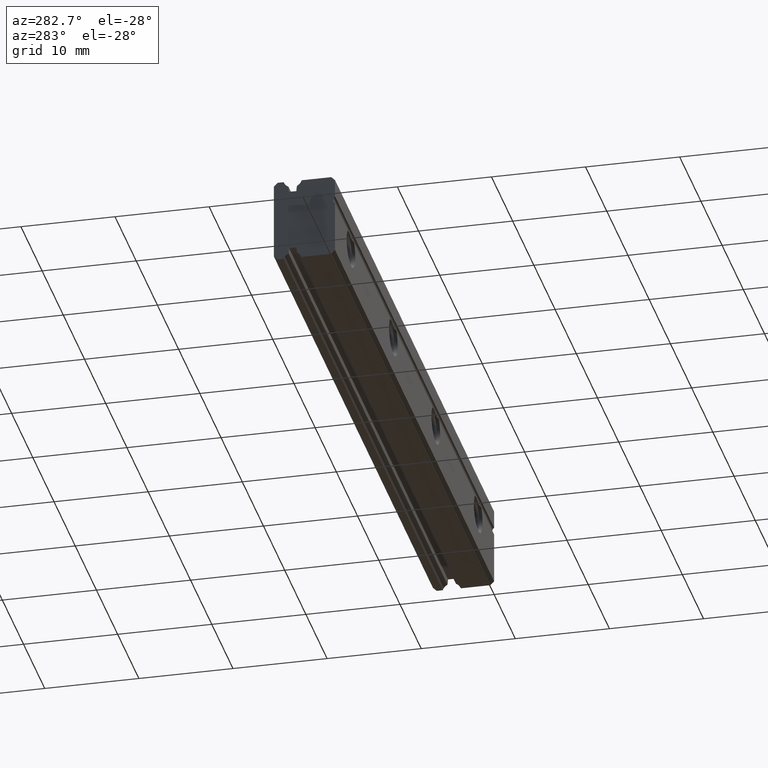
[diagram: clean part render]
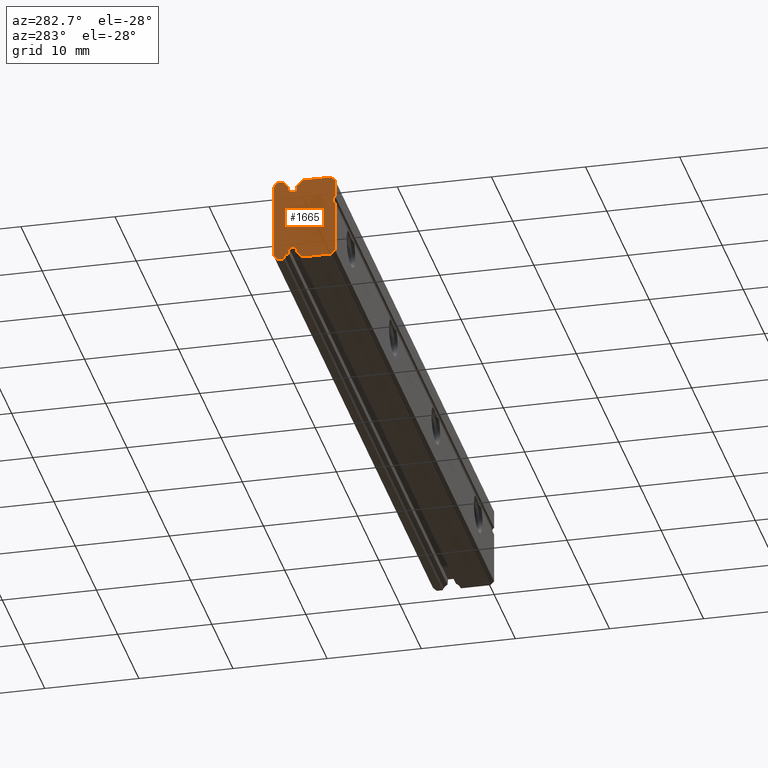
[diagram: same view with one face highlighted and labeled with its STEP entity id]
A machine part, auxiliary view. The second image highlights one B-rep face of the part: STEP entity #1665.
In plain terms, the highlighted planar face has unit normal (1, 0, 0).
Its self-contained STEP definition (entity closure, byte-faithful):
#473 = CARTESIAN_POINT ( 'NONE',  ( -75.00000000000000000, 5.421010862427522200E-017, 1.399999999999998800 ) ) ;
#637 = CIRCLE ( 'NONE', #683, 0.5000000000000000000 ) ;
#647 = CARTESIAN_POINT ( 'NONE',  ( -75.00000000000000000, -1.084202172485504400E-016, 2.199999999999999300 ) ) ;
#661 = CARTESIAN_POINT ( 'NONE',  ( -75.00000000000000000, -6.505213034913026600E-016, 4.100000000000000500 ) ) ;
#680 = DIRECTION ( 'NONE',  ( 0.0000000000000000000, 0.0000000000000000000, -1.000000000000000000 ) ) ;
#681 = DIRECTION ( 'NONE',  ( -1.000000000000000000, 0.0000000000000000000, 0.0000000000000000000 ) ) ;
#682 = CARTESIAN_POINT ( 'NONE',  ( -75.00000000000000000, -0.2999999999999999300, 1.799999999999999200 ) ) ;
#683 = AXIS2_PLACEMENT_3D ( 'NONE', #682, #681, #680 ) ;
#711 = DIRECTION ( 'NONE',  ( 0.0000000000000000000, 2.567847250623561900E-016, -1.000000000000000000 ) ) ;
#712 = VECTOR ( 'NONE', #711, 1000.000000000000000 ) ;
#713 = CARTESIAN_POINT ( 'NONE',  ( -75.00000000000000000, -6.505213034913026600E-016, 4.100000000000000500 ) ) ;
#714 = LINE ( 'NONE', #713, #712 ) ;
#717 = CARTESIAN_POINT ( 'NONE',  ( -75.00000000000000000, 4.054999999999997100, 3.904469431007518300 ) ) ;
#722 = DIRECTION ( 'NONE',  ( 0.0000000000000000000, 0.0000000000000000000, -1.000000000000000000 ) ) ;
#723 = DIRECTION ( 'NONE',  ( -1.000000000000000000, 0.0000000000000000000, 0.0000000000000000000 ) ) ;
#724 = CARTESIAN_POINT ( 'NONE',  ( -75.00000000000000000, 4.499999999999999100, 4.799999999999999800 ) ) ;
#725 = AXIS2_PLACEMENT_3D ( 'NONE', #724, #723, #722 ) ;
#726 = CIRCLE ( 'NONE', #725, 0.9999999999999995600 ) ;
#731 = CARTESIAN_POINT ( 'NONE',  ( -75.00000000000000000, 0.3999999999999994100, 4.500000000000000900 ) ) ;
#732 = DIRECTION ( 'NONE',  ( 0.0000000000000000000, -0.7071067811865474600, -0.7071067811865476800 ) ) ;
#733 = VECTOR ( 'NONE', #732, 1000.000000000000000 ) ;
#734 = CARTESIAN_POINT ( 'NONE',  ( -75.00000000000000000, -6.505213034913026600E-016, 4.100000000000000500 ) ) ;
#735 = LINE ( 'NONE', #734, #733 ) ;
#785 = CARTESIAN_POINT ( 'NONE',  ( -75.00000000000000000, 4.945000000000000300, 3.904469431007518300 ) ) ;
#792 = CARTESIAN_POINT ( 'NONE',  ( -75.00000000000000000, 5.453939201416945400, 4.500000000000001800 ) ) ;
#803 = DIRECTION ( 'NONE',  ( 0.0000000000000000000, -1.000000000000000000, 0.0000000000000000000 ) ) ;
#804 = VECTOR ( 'NONE', #803, 1000.000000000000000 ) ;
#805 = CARTESIAN_POINT ( 'NONE',  ( -75.00000000000000000, 4.109999999999999400, 3.300000000000000700 ) ) ;
#806 = LINE ( 'NONE', #805, #804 ) ;
#807 = CARTESIAN_POINT ( 'NONE',  ( -75.00000000000000000, 4.889999999999999700, 3.300000000000000700 ) ) ;
#833 = DIRECTION ( 'NONE',  ( 0.0000000000000000000, -1.000000000000000000, 0.0000000000000000000 ) ) ;
#834 = VECTOR ( 'NONE', #833, 1000.000000000000000 ) ;
#835 = CARTESIAN_POINT ( 'NONE',  ( -75.00000000000000000, 6.099999999999992500, 4.500000000000001800 ) ) ;
#836 = LINE ( 'NONE', #835, #834 ) ;
#837 = CARTESIAN_POINT ( 'NONE',  ( -75.00000000000000000, 6.099999999999992500, 4.500000000000001800 ) ) ;
#843 = DIRECTION ( 'NONE',  ( 0.0000000000000000000, -0.09061456096607542500, -0.9958860383301521000 ) ) ;
#844 = VECTOR ( 'NONE', #843, 1000.000000000000200 ) ;
#845 = CARTESIAN_POINT ( 'NONE',  ( -75.00000000000000000, 4.945000000000000300, 3.904469431007518300 ) ) ;
#846 = LINE ( 'NONE', #845, #844 ) ;
#853 = CARTESIAN_POINT ( 'NONE',  ( -75.00000000000000000, 6.499999999999998200, 4.100000000000001400 ) ) ;
#854 = DIRECTION ( 'NONE',  ( 0.0000000000000000000, -0.7071067811865521200, 0.7071067811865430200 ) ) ;
#855 = VECTOR ( 'NONE', #854, 999.9999999999998900 ) ;
#856 = CARTESIAN_POINT ( 'NONE',  ( -75.00000000000000000, 6.499999999999998200, 4.100000000000001400 ) ) ;
#857 = LINE ( 'NONE', #856, #855 ) ;
#858 = DIRECTION ( 'NONE',  ( 0.0000000000000000000, 0.0000000000000000000, 1.000000000000000000 ) ) ;
#859 = DIRECTION ( 'NONE',  ( -1.000000000000000000, 0.0000000000000000000, 0.0000000000000000000 ) ) ;
#860 = CARTESIAN_POINT ( 'NONE',  ( -75.00000000000000000, 4.499999999999999100, 4.799999999999999800 ) ) ;
#861 = AXIS2_PLACEMENT_3D ( 'NONE', #860, #859, #858 ) ;
#862 = CIRCLE ( 'NONE', #861, 1.000000000000000000 ) ;
#880 = DIRECTION ( 'NONE',  ( 0.0000000000000000000, 0.0000000000000000000, -1.000000000000000000 ) ) ;
#881 = DIRECTION ( 'NONE',  ( 1.000000000000000000, 0.0000000000000000000, 0.0000000000000000000 ) ) ;
#882 = CARTESIAN_POINT ( 'NONE',  ( -75.00000000000000000, -0.2999999999999999300, 1.799999999999999200 ) ) ;
#883 = AXIS2_PLACEMENT_3D ( 'NONE', #882, #881, #880 ) ;
#885 = PLANE ( 'NONE',  #883 ) ;
#886 = FACE_OUTER_BOUND ( 'NONE', #1669, .T. ) ;
#887 = DIRECTION ( 'NONE',  ( 0.0000000000000000000, -4.231032868236115400E-016, 1.000000000000000000 ) ) ;
#888 = VECTOR ( 'NONE', #887, 1000.000000000000000 ) ;
#889 = CARTESIAN_POINT ( 'NONE',  ( -75.00000000000000000, 6.500000000000000000, 1.591988259969090200E-015 ) ) ;
#890 = LINE ( 'NONE', #889, #888 ) ;
#891 = CARTESIAN_POINT ( 'NONE',  ( -75.00000000000000000, 6.500000000000000000, -4.099999999999997900 ) ) ;
#912 = CARTESIAN_POINT ( 'NONE',  ( -75.00000000000000000, 4.109999999999999400, 3.300000000000000700 ) ) ;
#917 = CARTESIAN_POINT ( 'NONE',  ( -75.00000000000000000, 5.453939201416948100, -4.499999999999999100 ) ) ;
#918 = CARTESIAN_POINT ( 'NONE',  ( -75.00000000000000000, 4.945000000000002100, -3.904469431007515600 ) ) ;
#919 = DIRECTION ( 'NONE',  ( 0.0000000000000000000, -1.000000000000000000, -4.898425415289509000E-016 ) ) ;
#920 = VECTOR ( 'NONE', #919, 1000.000000000000000 ) ;
#921 = CARTESIAN_POINT ( 'NONE',  ( -75.00000000000000000, 6.099999999999995200, -4.499999999999999100 ) ) ;
#922 = LINE ( 'NONE', #921, #920 ) ;
#923 = DIRECTION ( 'NONE',  ( 0.0000000000000000000, 8.673617379884035500E-016, -1.000000000000000000 ) ) ;
#924 = DIRECTION ( 'NONE',  ( 1.000000000000000000, 0.0000000000000000000, 0.0000000000000000000 ) ) ;
#925 = CARTESIAN_POINT ( 'NONE',  ( -75.00000000000000000, 4.500000000000001800, -4.799999999999997200 ) ) ;
#926 = AXIS2_PLACEMENT_3D ( 'NONE', #925, #924, #923 ) ;
#927 = CIRCLE ( 'NONE', #926, 1.000000000000000000 ) ;
#928 = DIRECTION ( 'NONE',  ( 0.0000000000000000000, -1.000000000000000000, -4.898425415289509000E-016 ) ) ;
#929 = VECTOR ( 'NONE', #928, 1000.000000000000000 ) ;
#930 = CARTESIAN_POINT ( 'NONE',  ( -75.00000000000000000, 4.110000000000001200, -3.299999999999998500 ) ) ;
#931 = LINE ( 'NONE', #930, #929 ) ;
#932 = CARTESIAN_POINT ( 'NONE',  ( -75.00000000000000000, 4.110000000000001200, -3.299999999999998500 ) ) ;
#933 = CARTESIAN_POINT ( 'NONE',  ( -75.00000000000000000, 4.890000000000001500, -3.299999999999998000 ) ) ;
#934 = DIRECTION ( 'NONE',  ( 0.0000000000000000000, -0.09061456096607591000, 0.9958860383301521000 ) ) ;
#935 = VECTOR ( 'NONE', #934, 1000.000000000000200 ) ;
#936 = CARTESIAN_POINT ( 'NONE',  ( -75.00000000000000000, 4.945000000000002100, -3.904469431007515600 ) ) ;
#937 = LINE ( 'NONE', #936, #935 ) ;
#960 = DIRECTION ( 'NONE',  ( 0.0000000000000000000, -1.000000000000000000, -2.756977037376558500E-016 ) ) ;
#961 = VECTOR ( 'NONE', #960, 1000.000000000000000 ) ;
#962 = CARTESIAN_POINT ( 'NONE',  ( -75.00000000000000000, 0.3999999999999994100, 4.500000000000000900 ) ) ;
#963 = LINE ( 'NONE', #962, #961 ) ;
#964 = CARTESIAN_POINT ( 'NONE',  ( -75.00000000000000000, 3.546060798583052800, 4.500000000000001800 ) ) ;
#965 = DIRECTION ( 'NONE',  ( 0.0000000000000000000, -0.09061456096607542500, 0.9958860383301521000 ) ) ;
#966 = VECTOR ( 'NONE', #965, 1000.000000000000200 ) ;
#967 = CARTESIAN_POINT ( 'NONE',  ( -75.00000000000000000, 4.054999999999997900, 3.904469431007518300 ) ) ;
#968 = LINE ( 'NONE', #967, #966 ) ;
#1006 = CARTESIAN_POINT ( 'NONE',  ( -75.00000000000000000, 4.054999999999998800, -3.904469431007516100 ) ) ;
#1007 = DIRECTION ( 'NONE',  ( 0.0000000000000000000, -0.09061456096607493900, -0.9958860383301522100 ) ) ;
#1008 = VECTOR ( 'NONE', #1007, 1000.000000000000100 ) ;
#1009 = CARTESIAN_POINT ( 'NONE',  ( -75.00000000000000000, 4.054999999999999700, -3.904469431007516100 ) ) ;
#1015 = LINE ( 'NONE', #1009, #1008 ) ;
#1043 = DIRECTION ( 'NONE',  ( 0.0000000000000000000, -0.7071067811865517900, -0.7071067811865432400 ) ) ;
#1044 = VECTOR ( 'NONE', #1043, 1000.000000000000000 ) ;
#1045 = CARTESIAN_POINT ( 'NONE',  ( -75.00000000000000000, 6.500000000000000000, -4.099999999999997900 ) ) ;
#1046 = LINE ( 'NONE', #1045, #1044 ) ;
#1053 = DIRECTION ( 'NONE',  ( 0.0000000000000000000, -1.000000000000000000, -2.141448377912950600E-016 ) ) ;
#1054 = VECTOR ( 'NONE', #1053, 1000.000000000000000 ) ;
#1055 = CARTESIAN_POINT ( 'NONE',  ( -75.00000000000000000, 0.4000000000000016300, -4.500000000000000900 ) ) ;
#1056 = LINE ( 'NONE', #1055, #1054 ) ;
#1057 = CARTESIAN_POINT ( 'NONE',  ( -75.00000000000000000, 0.4000000000000016300, -4.500000000000000900 ) ) ;
#1058 = CARTESIAN_POINT ( 'NONE',  ( -75.00000000000000000, 6.099999999999995200, -4.499999999999999100 ) ) ;
#1059 = DIRECTION ( 'NONE',  ( 0.0000000000000000000, -0.7071067811865477900, 0.7071067811865473500 ) ) ;
#1060 = VECTOR ( 'NONE', #1059, 1000.000000000000000 ) ;
#1061 = CARTESIAN_POINT ( 'NONE',  ( -75.00000000000000000, 1.357833116777396200E-015, -4.100000000000000500 ) ) ;
#1062 = LINE ( 'NONE', #1061, #1060 ) ;
#1063 = CARTESIAN_POINT ( 'NONE',  ( -75.00000000000000000, 3.546060798583055000, -4.500000000000000000 ) ) ;
#1064 = DIRECTION ( 'NONE',  ( 0.0000000000000000000, -8.673617379884039400E-016, 1.000000000000000000 ) ) ;
#1065 = DIRECTION ( 'NONE',  ( 1.000000000000000000, 0.0000000000000000000, 0.0000000000000000000 ) ) ;
#1066 = CARTESIAN_POINT ( 'NONE',  ( -75.00000000000000000, 4.500000000000001800, -4.799999999999997200 ) ) ;
#1067 = AXIS2_PLACEMENT_3D ( 'NONE', #1066, #1065, #1064 ) ;
#1068 = CIRCLE ( 'NONE', #1067, 0.9999999999999995600 ) ;
#1254 = CARTESIAN_POINT ( 'NONE',  ( -75.00000000000000000, 1.357833116777396200E-015, -4.100000000000000500 ) ) ;
#1300 = DIRECTION ( 'NONE',  ( 0.0000000000000000000, -3.872150616019662000E-017, -1.000000000000000000 ) ) ;
#1301 = VECTOR ( 'NONE', #1300, 1000.000000000000000 ) ;
#1302 = CARTESIAN_POINT ( 'NONE',  ( -75.00000000000000000, 5.421010862427522200E-017, 1.399999999999998800 ) ) ;
#1307 = LINE ( 'NONE', #1302, #1301 ) ;
#1456 = VERTEX_POINT ( 'NONE', #473 ) ;
#1536 = VERTEX_POINT ( 'NONE', #647 ) ;
#1537 = EDGE_CURVE ( 'NONE', #1536, #1456, #637, .T. ) ;
#1546 = VERTEX_POINT ( 'NONE', #661 ) ;
#1552 = EDGE_CURVE ( 'NONE', #1546, #1536, #714, .T. ) ;
#1574 = EDGE_CURVE ( 'NONE', #1575, #1546, #735, .T. ) ;
#1575 = VERTEX_POINT ( 'NONE', #731 ) ;
#1578 = EDGE_CURVE ( 'NONE', #1581, #1697, #726, .T. ) ;
#1581 = VERTEX_POINT ( 'NONE', #717 ) ;
#1604 = VERTEX_POINT ( 'NONE', #807 ) ;
#1606 = EDGE_CURVE ( 'NONE', #1604, #1693, #806, .T. ) ;
#1613 = VERTEX_POINT ( 'NONE', #792 ) ;
#1617 = VERTEX_POINT ( 'NONE', #785 ) ;
#1620 = EDGE_CURVE ( 'NONE', #1617, #1604, #846, .T. ) ;
#1624 = VERTEX_POINT ( 'NONE', #837 ) ;
#1625 = EDGE_CURVE ( 'NONE', #1624, #1613, #836, .T. ) ;
#1648 = EDGE_CURVE ( 'NONE', #1613, #1617, #862, .T. ) ;
#1649 = EDGE_CURVE ( 'NONE', #1650, #1624, #857, .T. ) ;
#1650 = VERTEX_POINT ( 'NONE', #853 ) ;
#1661 = VERTEX_POINT ( 'NONE', #891 ) ;
#1663 = EDGE_CURVE ( 'NONE', #1661, #1650, #890, .T. ) ;
#1665 = ADVANCED_FACE ( 'NONE', ( #886 ), #885, .F. ) ;
#1669 = EDGE_LOOP ( 'NONE', ( #1673, #1781, #1689, #1684, #1688, #1679, #1766, #1769, #1777, #1778, #1776, #1784, #1773, #1774, #1759, #1761, #1760, #1762, #1758, #1763, #1764, #1765 ) ) ;
#1673 = ORIENTED_EDGE ( 'NONE', *, *, #1663, .F. ) ;
#1677 = EDGE_CURVE ( 'NONE', #1686, #1678, #937, .T. ) ;
#1678 = VERTEX_POINT ( 'NONE', #933 ) ;
#1679 = ORIENTED_EDGE ( 'NONE', *, *, #1681, .T. ) ;
#1680 = VERTEX_POINT ( 'NONE', #932 ) ;
#1681 = EDGE_CURVE ( 'NONE', #1678, #1680, #931, .T. ) ;
#1683 = EDGE_CURVE ( 'NONE', #1687, #1686, #927, .T. ) ;
#1684 = ORIENTED_EDGE ( 'NONE', *, *, #1683, .T. ) ;
#1685 = EDGE_CURVE ( 'NONE', #1775, #1687, #922, .T. ) ;
#1686 = VERTEX_POINT ( 'NONE', #918 ) ;
#1687 = VERTEX_POINT ( 'NONE', #917 ) ;
#1688 = ORIENTED_EDGE ( 'NONE', *, *, #1677, .T. ) ;
#1689 = ORIENTED_EDGE ( 'NONE', *, *, #1685, .T. ) ;
#1693 = VERTEX_POINT ( 'NONE', #912 ) ;
#1696 = EDGE_CURVE ( 'NONE', #1693, #1581, #968, .T. ) ;
#1697 = VERTEX_POINT ( 'NONE', #964 ) ;
#1700 = EDGE_CURVE ( 'NONE', #1697, #1575, #963, .T. ) ;
#1758 = ORIENTED_EDGE ( 'NONE', *, *, #1620, .F. ) ;
#1759 = ORIENTED_EDGE ( 'NONE', *, *, #1700, .F. ) ;
#1760 = ORIENTED_EDGE ( 'NONE', *, *, #1696, .F. ) ;
#1761 = ORIENTED_EDGE ( 'NONE', *, *, #1578, .F. ) ;
#1762 = ORIENTED_EDGE ( 'NONE', *, *, #1606, .F. ) ;
#1763 = ORIENTED_EDGE ( 'NONE', *, *, #1648, .F. ) ;
#1764 = ORIENTED_EDGE ( 'NONE', *, *, #1625, .F. ) ;
#1765 = ORIENTED_EDGE ( 'NONE', *, *, #1649, .F. ) ;
#1766 = ORIENTED_EDGE ( 'NONE', *, *, #1767, .T. ) ;
#1767 = EDGE_CURVE ( 'NONE', #1680, #1768, #1015, .T. ) ;
#1768 = VERTEX_POINT ( 'NONE', #1006 ) ;
#1769 = ORIENTED_EDGE ( 'NONE', *, *, #1770, .T. ) ;
#1770 = EDGE_CURVE ( 'NONE', #1768, #1771, #1068, .T. ) ;
#1771 = VERTEX_POINT ( 'NONE', #1063 ) ;
#1772 = EDGE_CURVE ( 'NONE', #1779, #1945, #1062, .T. ) ;
#1773 = ORIENTED_EDGE ( 'NONE', *, *, #1552, .F. ) ;
#1774 = ORIENTED_EDGE ( 'NONE', *, *, #1574, .F. ) ;
#1775 = VERTEX_POINT ( 'NONE', #1058 ) ;
#1776 = ORIENTED_EDGE ( 'NONE', *, *, #1990, .F. ) ;
#1777 = ORIENTED_EDGE ( 'NONE', *, *, #1780, .T. ) ;
#1778 = ORIENTED_EDGE ( 'NONE', *, *, #1772, .T. ) ;
#1779 = VERTEX_POINT ( 'NONE', #1057 ) ;
#1780 = EDGE_CURVE ( 'NONE', #1771, #1779, #1056, .T. ) ;
#1781 = ORIENTED_EDGE ( 'NONE', *, *, #1787, .T. ) ;
#1784 = ORIENTED_EDGE ( 'NONE', *, *, #1537, .F. ) ;
#1787 = EDGE_CURVE ( 'NONE', #1661, #1775, #1046, .T. ) ;
#1945 = VERTEX_POINT ( 'NONE', #1254 ) ;
#1990 = EDGE_CURVE ( 'NONE', #1456, #1945, #1307, .T. ) ;